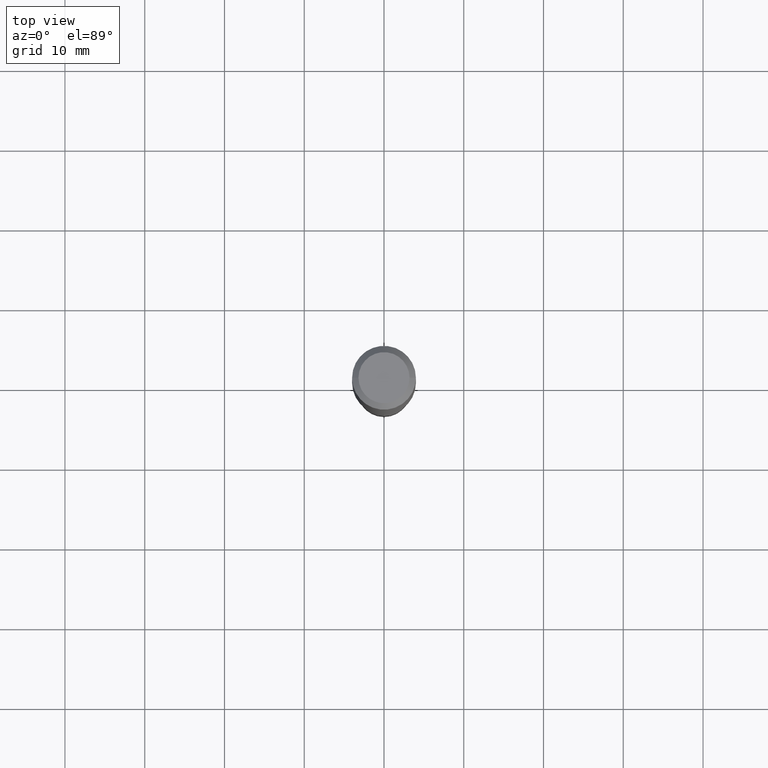
[diagram: clean part render]
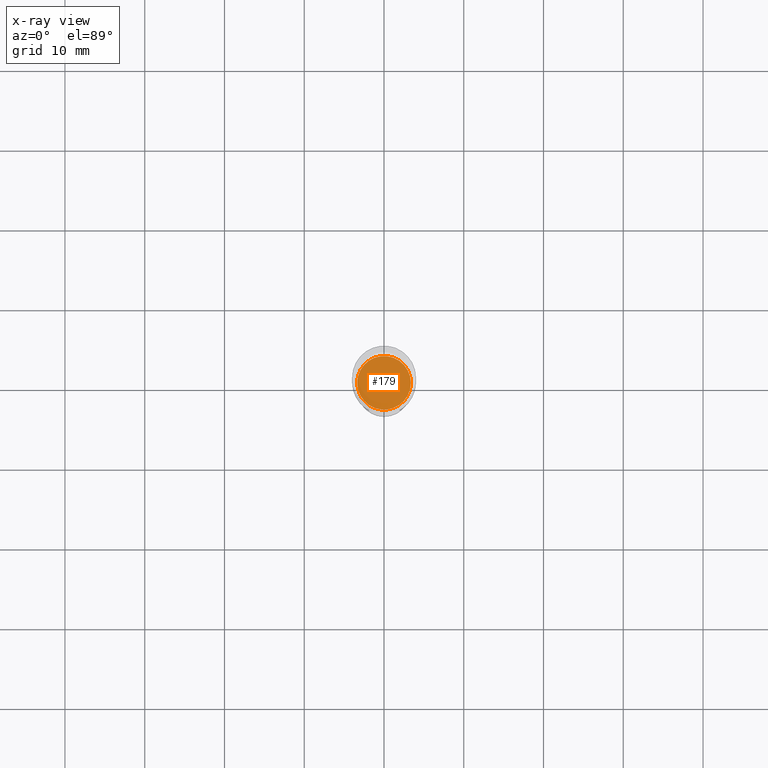
[diagram: x-ray — body ghosted, one internal face saturated and labeled with its STEP entity id]
A machine part, top view, then the same camera in x-ray: the body is ghosted and one INTERNAL B-rep face — a face not visible from any outside direction — is saturated and labeled: STEP entity #179.
In plain terms, the highlighted planar face has unit normal (-0, 0, 1).
Its self-contained STEP definition (entity closure, byte-faithful):
#28 = DIRECTION ( 'NONE',  ( 1.000000000000000000, -6.982962677686270655E-15, 0.000000000000000000 ) ) ;
#56 = DIRECTION ( 'NONE',  ( -2.438088387897960049E-29, 3.491481338843145188E-15, 1.000000000000000000 ) ) ;
#58 = CARTESIAN_POINT ( 'NONE',  ( 1.502549211185310459E-29, -8.313385080219499836E-15, -1.496400000000000396 ) ) ;
#61 = CARTESIAN_POINT ( 'NONE',  ( -0.1323499999999999954, -4.281600137492280573E-15, -1.496400000000000396 ) ) ;
#90 = DIRECTION ( 'NONE',  ( 1.000000000000000000, -6.982962677686270655E-15, 0.000000000000000000 ) ) ;
#93 = EDGE_CURVE ( 'NONE', #229, #164, #272, .T. ) ;
#95 = CARTESIAN_POINT ( 'NONE',  ( 3.659399521575439863E-29, -5.224652675444884140E-15, -1.496400000000000396 ) ) ;
#161 = ORIENTED_EDGE ( 'NONE', *, *, #93, .F. ) ;
#164 = VERTEX_POINT ( 'NONE', #171 ) ;
#171 = CARTESIAN_POINT ( 'NONE',  ( 0.1323499999999999954, -6.148847785836662050E-15, -1.496400000000000396 ) ) ;
#179 = ADVANCED_FACE ( 'NONE', ( #473 ), #475, .F. ) ;
#203 = DIRECTION ( 'NONE',  ( 1.000000000000000000, -6.982962677686265922E-15, 4.876176775795935793E-29 ) ) ;
#208 = AXIS2_PLACEMENT_3D ( 'NONE', #478, #361, #28 ) ;
#229 = VERTEX_POINT ( 'NONE', #61 ) ;
#237 = DIRECTION ( 'NONE',  ( -2.445468806185136597E-29, 3.491481338843145583E-15, 1.000000000000000000 ) ) ;
#259 = EDGE_CURVE ( 'NONE', #164, #229, #330, .T. ) ;
#272 = CIRCLE ( 'NONE', #279, 0.1323499999999999954 ) ;
#279 = AXIS2_PLACEMENT_3D ( 'NONE', #95, #237, #90 ) ;
#330 = CIRCLE ( 'NONE', #208, 0.1323499999999999954 ) ;
#361 = DIRECTION ( 'NONE',  ( -2.445468806185136597E-29, 3.491481338843145583E-15, 1.000000000000000000 ) ) ;
#410 = EDGE_LOOP ( 'NONE', ( #457, #161 ) ) ;
#416 = AXIS2_PLACEMENT_3D ( 'NONE', #58, #56, #203 ) ;
#457 = ORIENTED_EDGE ( 'NONE', *, *, #259, .F. ) ;
#473 = FACE_OUTER_BOUND ( 'NONE', #410, .T. ) ;
#475 = PLANE ( 'NONE',  #416 ) ;
#478 = CARTESIAN_POINT ( 'NONE',  ( 3.659399521575439863E-29, -5.224652675444884140E-15, -1.496400000000000396 ) ) ;